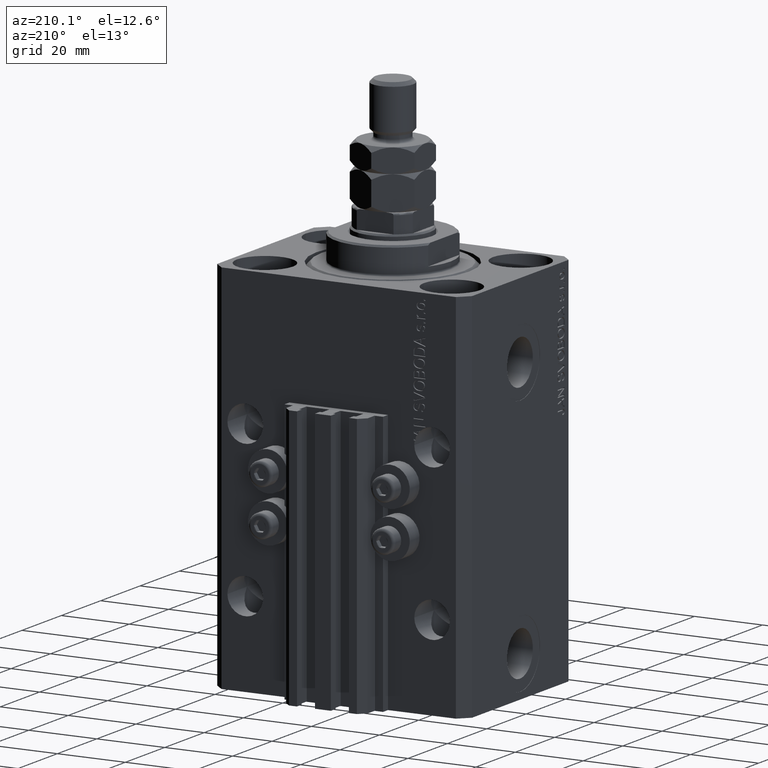
[diagram: clean part render]
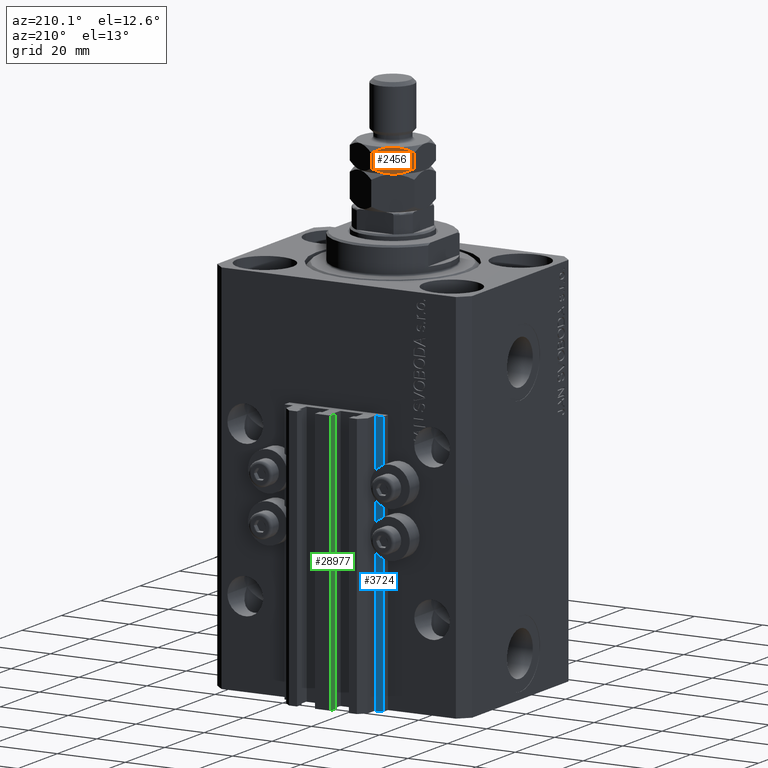
[diagram: same view with three faces highlighted in distinct colors, each labeled with its STEP entity id]
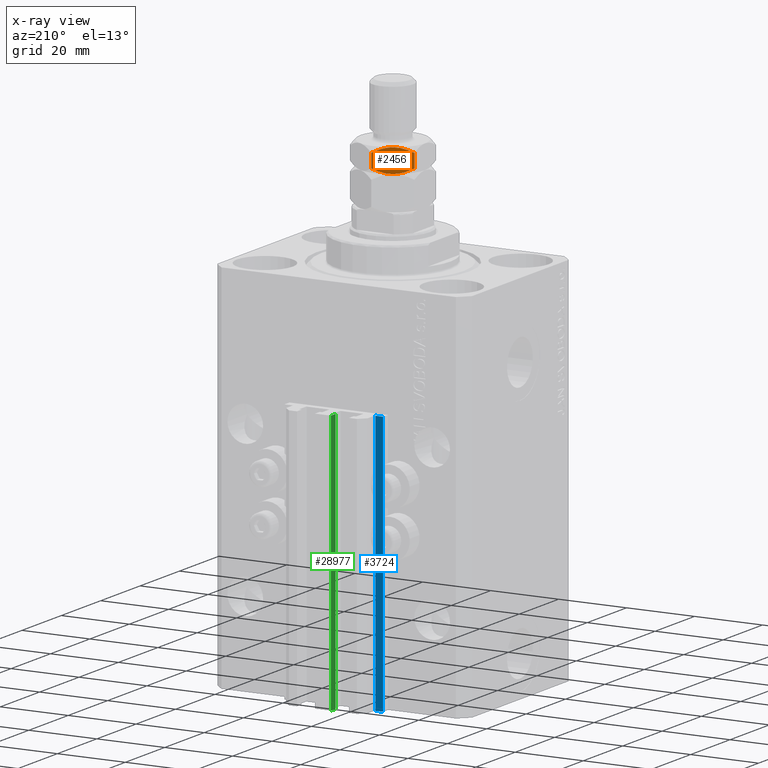
[diagram: x-ray of the same camera — body ghosted, the three highlighted faces saturated]
A machine part, auxiliary view with three faces highlighted in distinct colors.
The next image is the same camera in x-ray (body ghosted, the three faces saturated) — at least one of them is partly hidden behind the body in this view.
Their STEP definitions:

[orange] entity #2456 — the highlighted planar face has unit normal (0.5, -0.866, 0).
#797 = VERTEX_POINT ( 'NONE', #45575 ) ;
#1074 = CARTESIAN_POINT ( 'NONE',  ( -0.7440058743609622161, 10.54010312276192174, 11.04010312276182937 ) ) ;
#1713 = DIRECTION ( 'NONE',  ( -0.000000000000000000, -0.000000000000000000, -1.000000000000000000 ) ) ;
#2379 = ORIENTED_EDGE ( 'NONE', *, *, #9690, .F. ) ;
#2456 = ADVANCED_FACE ( 'NONE', ( #32588 ), #17994, .F. ) ;
#3981 = VERTEX_POINT ( 'NONE', #4855 ) ;
#4141 = EDGE_CURVE ( 'NONE', #3981, #797, #11402, .T. ) ;
#4256 = CARTESIAN_POINT ( 'NONE',  ( -6.388382028668172730, 7.281321030665148797, 16.85412438422453008 ) ) ;
#4491 = CARTESIAN_POINT ( 'NONE',  ( -5.576215397865950330, 7.750225653585641972, 17.00000000000000000 ) ) ;
#4799 = CARTESIAN_POINT ( 'NONE',  ( -3.111617971331823274, 9.173161641239182984, 10.14587561577547348 ) ) ;
#4855 = CARTESIAN_POINT ( 'NONE',  ( -9.499999999999998224, 5.484827557301440670, 11.46965511460288312 ) ) ;
#5485 = LINE ( 'NONE', #39355, #29459 ) ;
#6082 = CARTESIAN_POINT ( 'NONE',  ( -5.166021702288267292, 7.987051094147307850, 9.999999999999998224 ) ) ;
#6711 = ORIENTED_EDGE ( 'NONE', *, *, #24875, .T. ) ;
#6731 = VERTEX_POINT ( 'NONE', #34095 ) ;
#7714 = CARTESIAN_POINT ( 'NONE',  ( -8.755994125639032788, 5.914379549142407377, 15.95989687723817241 ) ) ;
#8501 = CARTESIAN_POINT ( 'NONE',  ( -1.509821400858455398, 10.09795932238900029, 10.67163696945126716 ) ) ;
#8843 = EDGE_CURVE ( 'NONE', #6731, #12559, #40515, .T. ) ;
#9690 = EDGE_CURVE ( 'NONE', #12559, #32400, #46376, .T. ) ;
#9796 = CARTESIAN_POINT ( 'NONE',  ( -7.993405681187612188, 6.354660192827332743, 10.67417488247127721 ) ) ;
#11402 = B_SPLINE_CURVE_WITH_KNOTS ( 'NONE', 3,
 ( #28619, #39956, #9796, #39457, #13980, #43681, #6082, #36246 ),
 .UNSPECIFIED., .F., .F.,
 ( 4, 2, 2, 4 ),
 ( 2.544312669948822529E-07, 0.002843014744722347203, 0.004264394901450023478, 0.005685775058177699320 ),
 .UNSPECIFIED. ) ;
#11555 = EDGE_LOOP ( 'NONE', ( #24511, #32911, #2379, #35645, #6711, #44608 ) ) ;
#12559 = VERTEX_POINT ( 'NONE', #38539 ) ;
#12914 = DIRECTION ( 'NONE',  ( -0.000000000000000000, -0.000000000000000000, -1.000000000000000000 ) ) ;
#13980 = CARTESIAN_POINT ( 'NONE',  ( -6.408273631871768572, 7.269836608200939132, 10.17974185471203263 ) ) ;
#15190 = CARTESIAN_POINT ( 'NONE',  ( -1.506594318812381372, 10.09982247907699815, 16.32582511752872634 ) ) ;
#15775 = VECTOR ( 'NONE', #1713, 1000.000000000000000 ) ;
#16451 = CARTESIAN_POINT ( 'NONE',  ( -9.499999999999998224, 5.484827557301440670, 15.53034488539711688 ) ) ;
#17994 = PLANE ( 'NONE',  #27687 ) ;
#19179 = CARTESIAN_POINT ( 'NONE',  ( -4.749999999999998224, 8.227241335952161450, 17.00000000000000000 ) ) ;
#19361 = CARTESIAN_POINT ( 'NONE',  ( -7.990178599141542826, 6.356523349515328825, 16.32836303054872928 ) ) ;
#20831 = B_SPLINE_CURVE_WITH_KNOTS ( 'NONE', 3,
 ( #24105, #23866, #4799, #8501, #1074, #35211 ),
 .UNSPECIFIED., .F., .F.,
 ( 4, 2, 4 ),
 ( 0.005685775058177699320, 0.008508623398180328867, 0.01133147173818295841 ),
 .UNSPECIFIED. ) ;
#22204 = DIRECTION ( 'NONE',  ( 0.8660254037844385966, 0.5000000000000001110, 0.000000000000000000 ) ) ;
#23314 = CARTESIAN_POINT ( 'NONE',  ( -9.499999999999998224, 5.484827557301440670, 15.53034488539711688 ) ) ;
#23866 = CARTESIAN_POINT ( 'NONE',  ( -3.923784602134042565, 8.704257018318687145, 10.00000000000000000 ) ) ;
#24105 = CARTESIAN_POINT ( 'NONE',  ( -4.749999999999993783, 8.227241335952166779, 10.00000000000000000 ) ) ;
#24511 = ORIENTED_EDGE ( 'NONE', *, *, #4141, .F. ) ;
#24875 = EDGE_CURVE ( 'NONE', #6731, #31053, #5485, .T. ) ;
#26356 = CARTESIAN_POINT ( 'NONE',  ( -0.7448681452486599630, 10.53960529043279415, 15.96039470956720585 ) ) ;
#26839 = CARTESIAN_POINT ( 'NONE',  ( -3.091726368128225211, 9.184646063703389984, 16.82025814528796204 ) ) ;
#27232 = CARTESIAN_POINT ( 'NONE',  ( -9.499999999999998224, 5.484827557301440670, 17.00000000000000000 ) ) ;
#27687 = AXIS2_PLACEMENT_3D ( 'NONE', #33305, #37254, #22204 ) ;
#28619 = CARTESIAN_POINT ( 'NONE',  ( -9.499999999999998224, 5.484827557301440670, 11.46965511460288312 ) ) ;
#29459 = VECTOR ( 'NONE', #12914, 1000.000000000000000 ) ;
#31053 = VERTEX_POINT ( 'NONE', #44498 ) ;
#32400 = VERTEX_POINT ( 'NONE', #16451 ) ;
#32588 = FACE_OUTER_BOUND ( 'NONE', #11555, .T. ) ;
#32911 = ORIENTED_EDGE ( 'NONE', *, *, #39617, .F. ) ;
#33305 = CARTESIAN_POINT ( 'NONE',  ( -3.412354640325339130E-17, 10.96965511460288667, 17.00000000000000000 ) ) ;
#34095 = CARTESIAN_POINT ( 'NONE',  ( -6.824709270553258672E-17, 10.96965511460288667, 15.53034488539711511 ) ) ;
#34237 = CARTESIAN_POINT ( 'NONE',  ( -3.911732050025008789, 8.711215562523259237, 16.96229423126699487 ) ) ;
#35211 = CARTESIAN_POINT ( 'NONE',  ( 1.530326643359561748E-18, 10.96965511460288667, 11.46965511460288489 ) ) ;
#35608 = LINE ( 'NONE', #27232, #15775 ) ;
#35645 = ORIENTED_EDGE ( 'NONE', *, *, #8843, .F. ) ;
#36246 = CARTESIAN_POINT ( 'NONE',  ( -4.749999999999993783, 8.227241335952166779, 10.00000000000000000 ) ) ;
#37254 = DIRECTION ( 'NONE',  ( 0.5000000000000001110, -0.8660254037844385966, 0.000000000000000000 ) ) ;
#38539 = CARTESIAN_POINT ( 'NONE',  ( -4.749999999999998224, 8.227241335952161450, 17.00000000000000000 ) ) ;
#39355 = CARTESIAN_POINT ( 'NONE',  ( -3.412354640325339130E-17, 10.96965511460288667, 17.00000000000000000 ) ) ;
#39457 = CARTESIAN_POINT ( 'NONE',  ( -6.809745054052669389, 7.038046974532854883, 10.28346213843118839 ) ) ;
#39617 = EDGE_CURVE ( 'NONE', #32400, #3981, #35608, .T. ) ;
#39956 = CARTESIAN_POINT ( 'NONE',  ( -8.755131854751336817, 5.914877381471534079, 11.03960529043279415 ) ) ;
#40515 = B_SPLINE_CURVE_WITH_KNOTS ( 'NONE', 3,
 ( #45121, #26356, #15190, #41398, #26839, #34237, #41897, #19179 ),
 .UNSPECIFIED., .F., .F.,
 ( 4, 2, 2, 4 ),
 ( 2.544312669947215284E-07, 0.002843014744722342866, 0.004264394901450018274, 0.005685775058177692382 ),
 .UNSPECIFIED. ) ;
#41398 = CARTESIAN_POINT ( 'NONE',  ( -2.690254945947326171, 9.416435697371476010, 16.71653786156880983 ) ) ;
#41586 = CARTESIAN_POINT ( 'NONE',  ( -4.749999999999998224, 8.227241335952161450, 17.00000000000000000 ) ) ;
#41897 = CARTESIAN_POINT ( 'NONE',  ( -4.333978297711725602, 8.467431577757023931, 17.00000000000000711 ) ) ;
#43681 = CARTESIAN_POINT ( 'NONE',  ( -5.588267949974984106, 7.743267109381070767, 10.03770576873299980 ) ) ;
#44498 = CARTESIAN_POINT ( 'NONE',  ( 1.530326643359561748E-18, 10.96965511460288667, 11.46965511460288489 ) ) ;
#44521 = EDGE_CURVE ( 'NONE', #797, #31053, #20831, .T. ) ;
#44608 = ORIENTED_EDGE ( 'NONE', *, *, #44521, .F. ) ;
#45121 = CARTESIAN_POINT ( 'NONE',  ( -6.824709270553258672E-17, 10.96965511460288667, 15.53034488539711511 ) ) ;
#45575 = CARTESIAN_POINT ( 'NONE',  ( -4.749999999999993783, 8.227241335952166779, 10.00000000000000000 ) ) ;
#46376 = B_SPLINE_CURVE_WITH_KNOTS ( 'NONE', 3,
 ( #41586, #4491, #4256, #19361, #7714, #23314 ),
 .UNSPECIFIED., .F., .F.,
 ( 4, 2, 4 ),
 ( 0.005685775058177692382, 0.008508623398180323663, 0.01133147173818295494 ),
 .UNSPECIFIED. ) ;

[blue] entity #3724 — the highlighted planar face has unit normal (0, 1, 0).
#3724 = ADVANCED_FACE ( 'NONE', ( #9612 ), #9356, .T. ) ;
#6140 = DIRECTION ( 'NONE',  ( 1.508455196501571429E-15, 1.000000000000000000, -0.000000000000000000 ) ) ;
#6649 = ORIENTED_EDGE ( 'NONE', *, *, #13273, .T. ) ;
#7896 = VECTOR ( 'NONE', #23987, 1000.000000000000000 ) ;
#8228 = CARTESIAN_POINT ( 'NONE',  ( -12.20000000000000107, 29.99999999999998934, -110.0000000000000000 ) ) ;
#8500 = CARTESIAN_POINT ( 'NONE',  ( -14.50000000000000000, 29.99999999999999289, -110.0000000000000000 ) ) ;
#8737 = VERTEX_POINT ( 'NONE', #15800 ) ;
#9356 = PLANE ( 'NONE',  #17819 ) ;
#9612 = FACE_OUTER_BOUND ( 'NONE', #36241, .T. ) ;
#12313 = EDGE_CURVE ( 'NONE', #16722, #8737, #15868, .T. ) ;
#13273 = EDGE_CURVE ( 'NONE', #8737, #15180, #39151, .T. ) ;
#13801 = DIRECTION ( 'NONE',  ( -1.000000000000000000, 1.508455196501571429E-15, 0.000000000000000000 ) ) ;
#15180 = VERTEX_POINT ( 'NONE', #31110 ) ;
#15507 = DIRECTION ( 'NONE',  ( 0.000000000000000000, 0.000000000000000000, 1.000000000000000000 ) ) ;
#15800 = CARTESIAN_POINT ( 'NONE',  ( -14.50000000000000000, 29.99999999999999289, -110.0000000000000000 ) ) ;
#15868 = LINE ( 'NONE', #22824, #34666 ) ;
#16722 = VERTEX_POINT ( 'NONE', #8228 ) ;
#17036 = CARTESIAN_POINT ( 'NONE',  ( -12.20000000000000107, 29.99999999999998934, -110.0000000000000000 ) ) ;
#17819 = AXIS2_PLACEMENT_3D ( 'NONE', #17036, #6140, #13801 ) ;
#22655 = ORIENTED_EDGE ( 'NONE', *, *, #34329, .F. ) ;
#22824 = CARTESIAN_POINT ( 'NONE',  ( -12.20000000000000107, 29.99999999999998934, -110.0000000000000000 ) ) ;
#23987 = DIRECTION ( 'NONE',  ( -1.000000000000000000, 1.508455196501571429E-15, 0.000000000000000000 ) ) ;
#24253 = ORIENTED_EDGE ( 'NONE', *, *, #43950, .F. ) ;
#26429 = LINE ( 'NONE', #38483, #46381 ) ;
#26540 = DIRECTION ( 'NONE',  ( -1.000000000000000000, 1.508455196501571429E-15, 0.000000000000000000 ) ) ;
#27697 = LINE ( 'NONE', #39527, #7896 ) ;
#31110 = CARTESIAN_POINT ( 'NONE',  ( -14.50000000000000000, 29.99999999999999289, -33.00000000000000000 ) ) ;
#34329 = EDGE_CURVE ( 'NONE', #16722, #46857, #26429, .T. ) ;
#34563 = VECTOR ( 'NONE', #42881, 1000.000000000000000 ) ;
#34666 = VECTOR ( 'NONE', #26540, 1000.000000000000000 ) ;
#36241 = EDGE_LOOP ( 'NONE', ( #24253, #22655, #43291, #6649 ) ) ;
#38483 = CARTESIAN_POINT ( 'NONE',  ( -12.20000000000000107, 29.99999999999998934, -110.0000000000000000 ) ) ;
#39151 = LINE ( 'NONE', #8500, #34563 ) ;
#39527 = CARTESIAN_POINT ( 'NONE',  ( -12.20000000000000107, 29.99999999999998934, -33.00000000000000000 ) ) ;
#42881 = DIRECTION ( 'NONE',  ( 0.000000000000000000, 0.000000000000000000, 1.000000000000000000 ) ) ;
#43291 = ORIENTED_EDGE ( 'NONE', *, *, #12313, .T. ) ;
#43950 = EDGE_CURVE ( 'NONE', #46857, #15180, #27697, .T. ) ;
#46381 = VECTOR ( 'NONE', #15507, 1000.000000000000000 ) ;
#46857 = VERTEX_POINT ( 'NONE', #48401 ) ;
#48401 = CARTESIAN_POINT ( 'NONE',  ( -12.20000000000000107, 29.99999999999998934, -33.00000000000000000 ) ) ;

[green] entity #28977 — the highlighted planar face has unit normal (-1, -0, 0).
#195 = CARTESIAN_POINT ( 'NONE',  ( -2.350000000000003642, 35.50000000000001421, -110.0000000000000000 ) ) ;
#3723 = VERTEX_POINT ( 'NONE', #17771 ) ;
#4628 = DIRECTION ( 'NONE',  ( -1.000000000000000000, -1.807003620809174632E-16, 0.000000000000000000 ) ) ;
#5024 = VERTEX_POINT ( 'NONE', #16983 ) ;
#7153 = DIRECTION ( 'NONE',  ( 0.000000000000000000, 0.000000000000000000, 1.000000000000000000 ) ) ;
#7192 = CARTESIAN_POINT ( 'NONE',  ( -2.350000000000003197, 33.10000000000000853, -110.0000000000000000 ) ) ;
#7728 = EDGE_CURVE ( 'NONE', #46253, #30744, #16523, .T. ) ;
#8595 = EDGE_LOOP ( 'NONE', ( #18906, #37302, #28102, #17798 ) ) ;
#11246 = LINE ( 'NONE', #22164, #36921 ) ;
#12630 = VECTOR ( 'NONE', #34091, 1000.000000000000000 ) ;
#13205 = EDGE_CURVE ( 'NONE', #3723, #5024, #11246, .T. ) ;
#13303 = DIRECTION ( 'NONE',  ( 1.807003620809174632E-16, -1.000000000000000000, 0.000000000000000000 ) ) ;
#16523 = LINE ( 'NONE', #17266, #29021 ) ;
#16983 = CARTESIAN_POINT ( 'NONE',  ( -2.350000000000003197, 33.10000000000000853, -33.00000000000000000 ) ) ;
#17266 = CARTESIAN_POINT ( 'NONE',  ( -2.350000000000003642, 35.50000000000001421, -110.0000000000000000 ) ) ;
#17771 = CARTESIAN_POINT ( 'NONE',  ( -2.350000000000003642, 35.50000000000001421, -33.00000000000000000 ) ) ;
#17798 = ORIENTED_EDGE ( 'NONE', *, *, #26124, .T. ) ;
#18841 = CARTESIAN_POINT ( 'NONE',  ( -2.350000000000003642, 35.50000000000001421, -110.0000000000000000 ) ) ;
#18906 = ORIENTED_EDGE ( 'NONE', *, *, #13205, .F. ) ;
#22164 = CARTESIAN_POINT ( 'NONE',  ( -2.350000000000003642, 35.50000000000001421, -33.00000000000000000 ) ) ;
#22646 = DIRECTION ( 'NONE',  ( 1.807003620809174632E-16, -1.000000000000000000, 0.000000000000000000 ) ) ;
#23695 = DIRECTION ( 'NONE',  ( 1.807003620809174632E-16, -1.000000000000000000, 0.000000000000000000 ) ) ;
#25557 = AXIS2_PLACEMENT_3D ( 'NONE', #38986, #4628, #23695 ) ;
#26124 = EDGE_CURVE ( 'NONE', #30744, #5024, #45239, .T. ) ;
#27645 = PLANE ( 'NONE',  #25557 ) ;
#28102 = ORIENTED_EDGE ( 'NONE', *, *, #7728, .T. ) ;
#28977 = ADVANCED_FACE ( 'NONE', ( #35531 ), #27645, .T. ) ;
#29021 = VECTOR ( 'NONE', #13303, 1000.000000000000000 ) ;
#30189 = VECTOR ( 'NONE', #7153, 1000.000000000000000 ) ;
#30744 = VERTEX_POINT ( 'NONE', #7192 ) ;
#34091 = DIRECTION ( 'NONE',  ( 0.000000000000000000, 0.000000000000000000, 1.000000000000000000 ) ) ;
#35531 = FACE_OUTER_BOUND ( 'NONE', #8595, .T. ) ;
#36819 = LINE ( 'NONE', #195, #12630 ) ;
#36921 = VECTOR ( 'NONE', #22646, 1000.000000000000000 ) ;
#37302 = ORIENTED_EDGE ( 'NONE', *, *, #40223, .F. ) ;
#38986 = CARTESIAN_POINT ( 'NONE',  ( -2.350000000000003642, 35.50000000000001421, -110.0000000000000000 ) ) ;
#40223 = EDGE_CURVE ( 'NONE', #46253, #3723, #36819, .T. ) ;
#45239 = LINE ( 'NONE', #47977, #30189 ) ;
#46253 = VERTEX_POINT ( 'NONE', #18841 ) ;
#47977 = CARTESIAN_POINT ( 'NONE',  ( -2.350000000000003197, 33.10000000000000853, -110.0000000000000000 ) ) ;